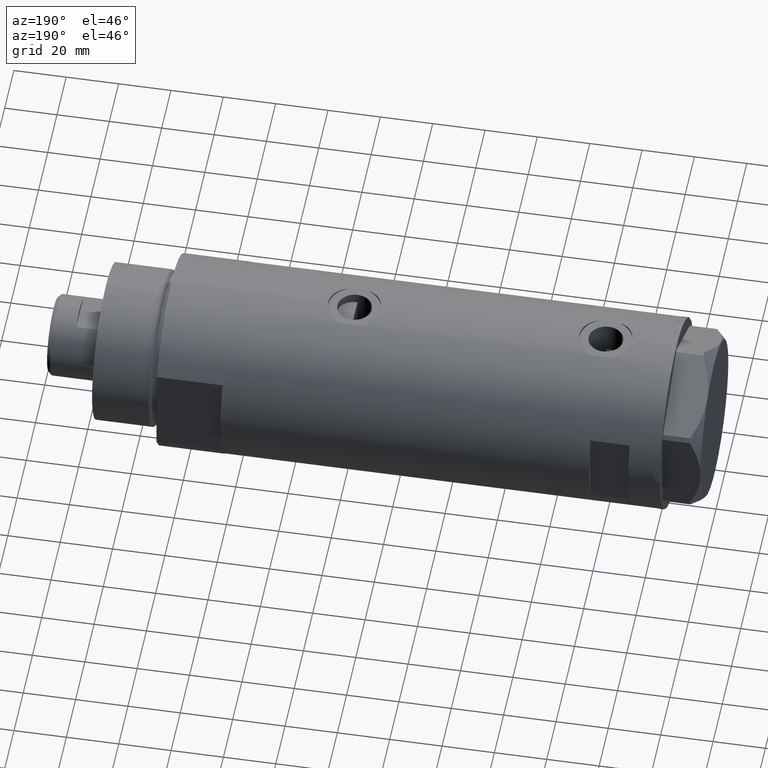
[diagram: clean part render]
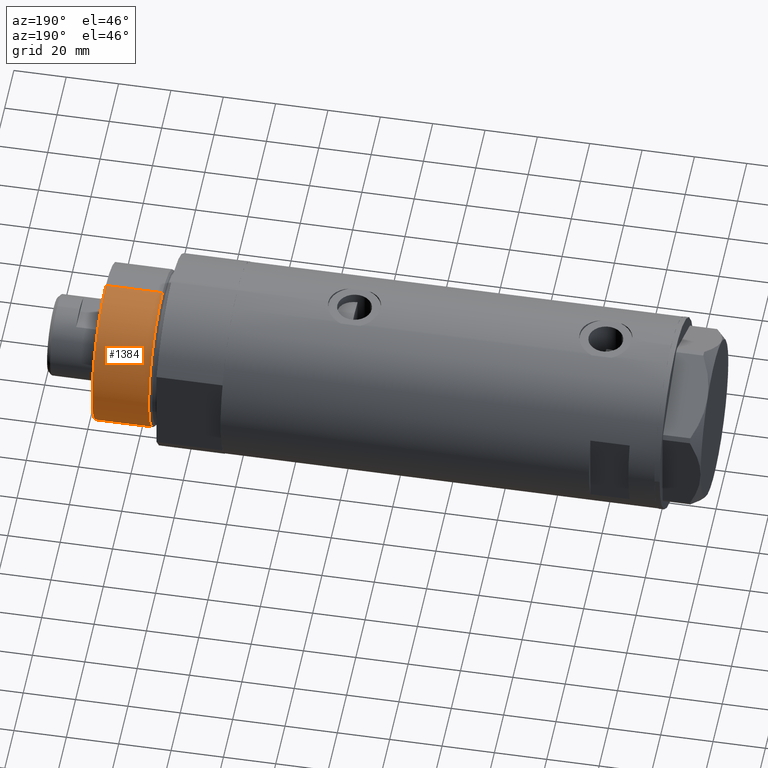
[diagram: same view with one face highlighted and labeled with its STEP entity id]
A machine part, auxiliary view. The second image highlights one B-rep face of the part: STEP entity #1384.
In plain terms, the highlighted cylindrical surface (partial cylindrical patch) has radius 30 mm, axis along (-1, -0, 0).
Its self-contained STEP definition (entity closure, byte-faithful):
#354 = CIRCLE ( 'NONE', #2101, 30.00000000000000000 ) ;
#380 = DIRECTION ( 'NONE',  ( 1.000000000000000000, 0.000000000000000000, 0.000000000000000000 ) ) ;
#577 = DIRECTION ( 'NONE',  ( -0.000000000000000000, -0.000000000000000000, -1.000000000000000000 ) ) ;
#626 = AXIS2_PLACEMENT_3D ( 'NONE', #2713, #3718, #1325 ) ;
#716 = VECTOR ( 'NONE', #2354, 1000.000000000000000 ) ;
#902 = CARTESIAN_POINT ( 'NONE',  ( -30.00000000000000000, 0.000000000000000000, 50.19999999999999574 ) ) ;
#965 = LINE ( 'NONE', #1398, #716 ) ;
#1049 = CARTESIAN_POINT ( 'NONE',  ( 30.00000000000000000, 3.673940397442058389E-15, 50.19999999999999574 ) ) ;
#1067 = VECTOR ( 'NONE', #577, 1000.000000000000000 ) ;
#1104 = CARTESIAN_POINT ( 'NONE',  ( 0.000000000000000000, 0.000000000000000000, 50.19999999999999574 ) ) ;
#1180 = CARTESIAN_POINT ( 'NONE',  ( 0.000000000000000000, 0.000000000000000000, 28.57384048104054486 ) ) ;
#1183 = EDGE_CURVE ( 'NONE', #4191, #3794, #1597, .T. ) ;
#1325 = DIRECTION ( 'NONE',  ( -1.000000000000000000, 0.000000000000000000, 0.000000000000000000 ) ) ;
#1384 = ADVANCED_FACE ( 'NONE', ( #2005 ), #3388, .T. ) ;
#1398 = CARTESIAN_POINT ( 'NONE',  ( 30.00000000000000000, 3.673940397442058389E-15, 50.19999999999999574 ) ) ;
#1453 = ORIENTED_EDGE ( 'NONE', *, *, #2595, .T. ) ;
#1597 = LINE ( 'NONE', #902, #1067 ) ;
#2005 = FACE_OUTER_BOUND ( 'NONE', #4031, .T. ) ;
#2074 = DIRECTION ( 'NONE',  ( 1.000000000000000000, 0.000000000000000000, 0.000000000000000000 ) ) ;
#2101 = AXIS2_PLACEMENT_3D ( 'NONE', #1180, #3816, #380 ) ;
#2145 = ORIENTED_EDGE ( 'NONE', *, *, #1183, .F. ) ;
#2258 = VERTEX_POINT ( 'NONE', #4143 ) ;
#2354 = DIRECTION ( 'NONE',  ( -0.000000000000000000, -0.000000000000000000, -1.000000000000000000 ) ) ;
#2476 = AXIS2_PLACEMENT_3D ( 'NONE', #1104, #4150, #2074 ) ;
#2595 = EDGE_CURVE ( 'NONE', #3160, #2258, #965, .T. ) ;
#2671 = ORIENTED_EDGE ( 'NONE', *, *, #4388, .F. ) ;
#2713 = CARTESIAN_POINT ( 'NONE',  ( 0.000000000000000000, 0.000000000000000000, 50.19999999999999574 ) ) ;
#2788 = CARTESIAN_POINT ( 'NONE',  ( -30.00000000000000000, 0.000000000000000000, 28.57384048104054486 ) ) ;
#2901 = EDGE_CURVE ( 'NONE', #2258, #3794, #354, .T. ) ;
#3031 = CARTESIAN_POINT ( 'NONE',  ( -30.00000000000000000, 0.000000000000000000, 50.19999999999999574 ) ) ;
#3160 = VERTEX_POINT ( 'NONE', #1049 ) ;
#3388 = CYLINDRICAL_SURFACE ( 'NONE', #626, 30.00000000000000000 ) ;
#3645 = ORIENTED_EDGE ( 'NONE', *, *, #2901, .T. ) ;
#3718 = DIRECTION ( 'NONE',  ( -0.000000000000000000, -0.000000000000000000, -1.000000000000000000 ) ) ;
#3794 = VERTEX_POINT ( 'NONE', #2788 ) ;
#3816 = DIRECTION ( 'NONE',  ( -0.000000000000000000, -0.000000000000000000, 1.000000000000000000 ) ) ;
#4031 = EDGE_LOOP ( 'NONE', ( #2671, #1453, #3645, #2145 ) ) ;
#4143 = CARTESIAN_POINT ( 'NONE',  ( 30.00000000000000000, 3.673940397442058389E-15, 28.57384048104054486 ) ) ;
#4150 = DIRECTION ( 'NONE',  ( 0.000000000000000000, 0.000000000000000000, 1.000000000000000000 ) ) ;
#4191 = VERTEX_POINT ( 'NONE', #3031 ) ;
#4349 = CIRCLE ( 'NONE', #2476, 30.00000000000000000 ) ;
#4388 = EDGE_CURVE ( 'NONE', #3160, #4191, #4349, .T. ) ;